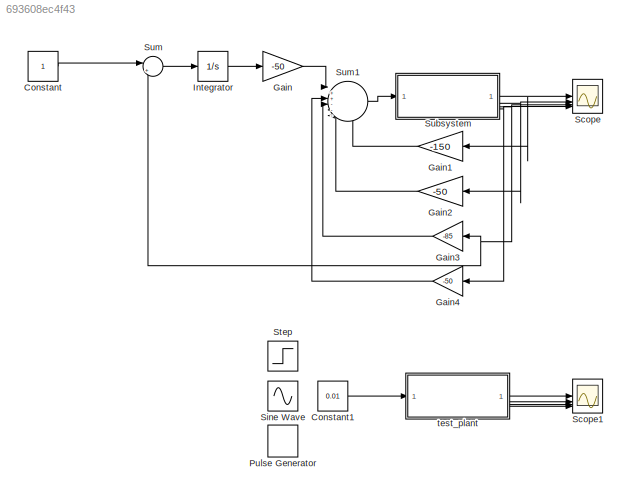
MODEL slx_693608ec4f43
KIND model
CONFIG AbsTol = auto
CONFIG EnableMultiTasking = off
CONFIG FixedStep = auto
CONFIG MaxStep = auto
CONFIG MinStep = auto
CONFIG RelTol = 1e-3
CONFIG SampleTimeConstraint = Unconstrained
CONFIG SolverName = VariableStepAuto
CONFIG StartTime = 0.0
CONFIG StopTime = 10
BLOCK [Constant] Constant
BLOCK [Constant] Constant1
  Value = 0.01
BLOCK [Gain] Gain
  Gain = -50
BLOCK [Gain] Gain1
  Gain = -150
BLOCK [Gain] Gain2
  Gain = -50
BLOCK [Gain] Gain3
  Gain = -85
BLOCK [Gain] Gain4
  Gain = -50
BLOCK [Integrator] Integrator
BLOCK [DiscretePulseGenerator] Pulse Generator
  Amplitude = 0.001
  Period = 1
  PulseType = Time based
  PulseWidth = 50
BLOCK [Scope] Scope
  Floating = off
  NumInputPorts = 4
  ScopeSpecificationString = Simulink.scopes.TimeScopeBlockCfg('CurrentConfiguration', extmgr.ConfigurationSet(extmgr.Configuration('Core','General UI',true),extmgr.Configuration('Core','Source UI',true),extmgr.Configuration('Sources','WiredSimulink',true),extmgr.Configuration('Visuals','Time Domain',true,'SerializedDisplays',{struct('MinYLimReal','-0.12038','MaxYLimReal','0.14108','YLabelReal','','MinYLimMag','0.00000','MaxY...<+4062ch>
BLOCK [Scope] Scope1
  Floating = off
  NumInputPorts = 4
  ScopeSpecificationString = Simulink.scopes.TimeScopeBlockCfg('CurrentConfiguration', extmgr.ConfigurationSet(extmgr.Configuration('Core','General UI',true,'FigureColor',[0 0 0]),extmgr.Configuration('Core','Source UI',true),extmgr.Configuration('Sources','WiredSimulink',true,'DataLoggingVariableName','ScopeData5'),extmgr.Configuration('Visuals','Time Domain',true,'SerializedDisplays',{struct('MinYLimReal','-1407125022512565...<+4274ch>
BLOCK [Sin] Sine Wave
  Amplitude = 0.01
  SampleTime = 0
BLOCK [Step] Step
  After = 0.01
  Before = -0.01
  SampleTime = 0
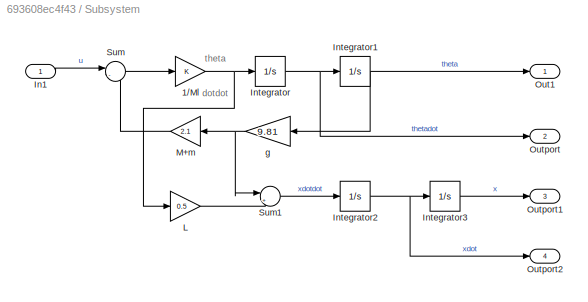
BLOCK [SubSystem] Subsystem
BLOCK [Gain] Subsystem/1//Ml
BLOCK [Inport] Subsystem/In1
BLOCK [Integrator] Subsystem/Integrator
BLOCK [Integrator] Subsystem/Integrator1
BLOCK [Integrator] Subsystem/Integrator2
BLOCK [Integrator] Subsystem/Integrator3
BLOCK [Gain] Subsystem/L
  Gain = 0.5
BLOCK [Gain] Subsystem/M+m
  Gain = 2.1
BLOCK [Outport] Subsystem/Out1
BLOCK [Outport] Subsystem/Outport
  Port = 2
BLOCK [Outport] Subsystem/Outport1
  Port = 3
BLOCK [Outport] Subsystem/Outport2
  Port = 4
BLOCK [Sum] Subsystem/Sum
  Inputs = |-+
BLOCK [Sum] Subsystem/Sum1
  Inputs = |+-
BLOCK [Gain] Subsystem/g
  Gain = 9.81
BLOCK [Sum] Sum
  Inputs = |+-
BLOCK [Sum] Sum1
  Inputs = |++----
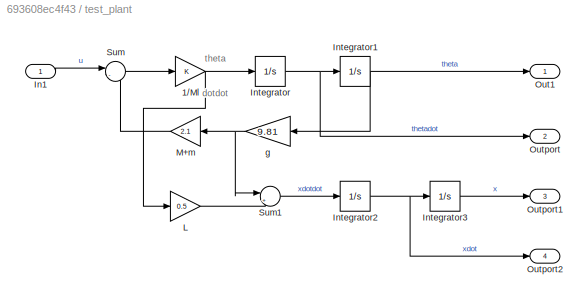
BLOCK [SubSystem] test_plant
BLOCK [Gain] test_plant/1//Ml
BLOCK [Inport] test_plant/In1
BLOCK [Integrator] test_plant/Integrator
BLOCK [Integrator] test_plant/Integrator1
BLOCK [Integrator] test_plant/Integrator2
BLOCK [Integrator] test_plant/Integrator3
BLOCK [Gain] test_plant/L
  Gain = 0.5
BLOCK [Gain] test_plant/M+m
  Gain = 2.1
BLOCK [Outport] test_plant/Out1
BLOCK [Outport] test_plant/Outport
  Port = 2
BLOCK [Outport] test_plant/Outport1
  Port = 3
BLOCK [Outport] test_plant/Outport2
  Port = 4
BLOCK [Sum] test_plant/Sum
  Inputs = |-+
BLOCK [Sum] test_plant/Sum1
  Inputs = |+-
BLOCK [Gain] test_plant/g
  Gain = 9.81
ANNOTATION Subsystem: theta dotdot
ANNOTATION test_plant: theta dotdot
LINE Constant1:1 -> test_plant:1
LINE Constant:1 -> Sum:1
LINE Gain1:1 -> Sum1:6
LINE Gain2:1 -> Sum1:5
LINE Gain3:1 -> Sum1:4
LINE Gain4:1 -> Sum1:3
LINE Gain:1 -> Sum1:1
LINE Integrator:1 -> Gain:1
NET Subsystem/1//Ml:1 -> Subsystem/Integrator:1, Subsystem/L:1
LINE Subsystem/In1:1 -> Subsystem/Sum:1
NET Subsystem/Integrator1:1 -> Subsystem/Out1:1, Subsystem/g:1
NET Subsystem/Integrator2:1 -> Subsystem/Integrator3:1, Subsystem/Outport2:1
LINE Subsystem/Integrator3:1 -> Subsystem/Outport1:1
NET Subsystem/Integrator:1 -> Subsystem/Integrator1:1, Subsystem/Outport:1
LINE Subsystem/L:1 -> Subsystem/Sum1:2
LINE Subsystem/M+m:1 -> Subsystem/Sum:2
LINE Subsystem/Sum1:1 -> Subsystem/Integrator2:1
LINE Subsystem/Sum:1 -> Subsystem/1//Ml:1
NET Subsystem/g:1 -> Subsystem/M+m:1, Subsystem/Sum1:1
NET Subsystem:1 -> Gain1:1, Scope:1
NET Subsystem:2 -> Gain2:1, Scope:2
NET Subsystem:3 -> Gain3:1, Scope:3, Sum:2
NET Subsystem:4 -> Gain4:1, Scope:4
LINE Sum1:1 -> Subsystem:1
LINE Sum:1 -> Integrator:1
NET test_plant/1//Ml:1 -> test_plant/Integrator:1, test_plant/L:1
LINE test_plant/In1:1 -> test_plant/Sum:1
NET test_plant/Integrator1:1 -> test_plant/Out1:1, test_plant/g:1
NET test_plant/Integrator2:1 -> test_plant/Integrator3:1, test_plant/Outport2:1
LINE test_plant/Integrator3:1 -> test_plant/Outport1:1
NET test_plant/Integrator:1 -> test_plant/Integrator1:1, test_plant/Outport:1
LINE test_plant/L:1 -> test_plant/Sum1:2
LINE test_plant/M+m:1 -> test_plant/Sum:2
LINE test_plant/Sum1:1 -> test_plant/Integrator2:1
LINE test_plant/Sum:1 -> test_plant/1//Ml:1
NET test_plant/g:1 -> test_plant/M+m:1, test_plant/Sum1:1
LINE test_plant:1 -> Scope1:1
LINE test_plant:2 -> Scope1:2
LINE test_plant:3 -> Scope1:3
LINE test_plant:4 -> Scope1:4
note: NET lines group one-source signal fan-out (src -> all destinations, sorted); 1:1 wires keep LINE
